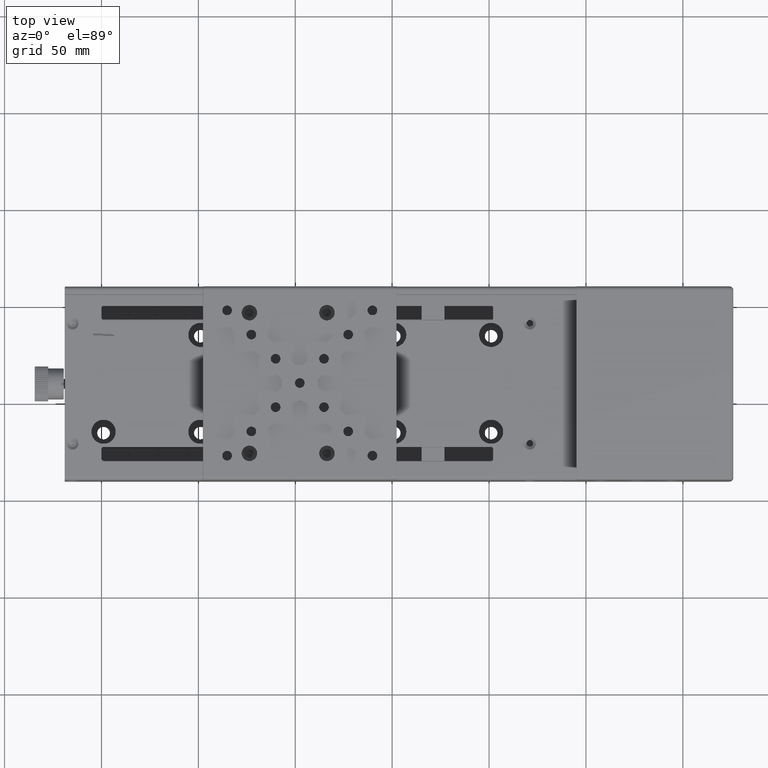
[diagram: clean part render]
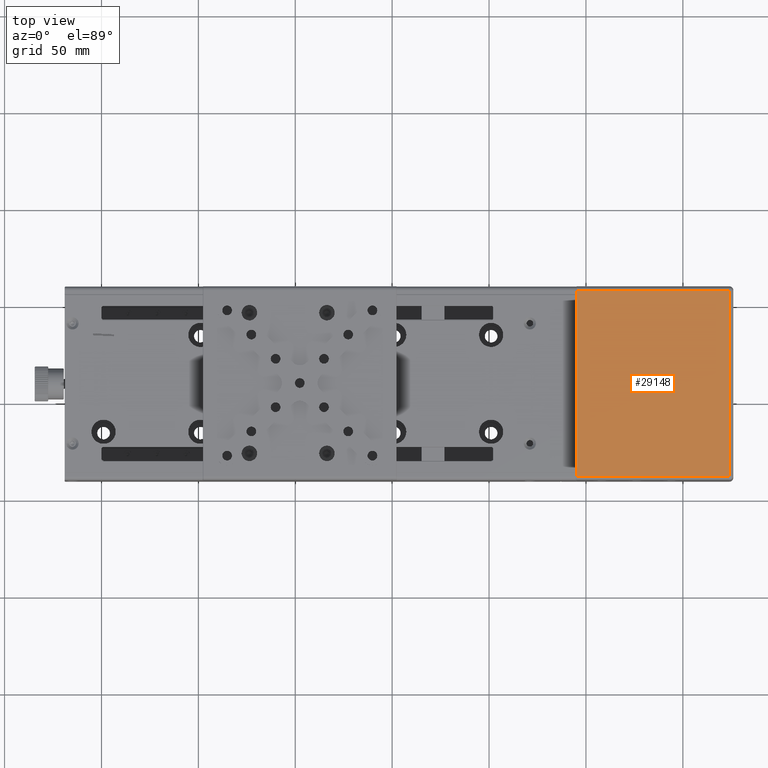
[diagram: same view with one face highlighted and labeled with its STEP entity id]
A machine part, top view. The second image highlights one B-rep face of the part: STEP entity #29148.
In plain terms, the highlighted planar face has unit normal (0, 0, -1).
Its self-contained STEP definition (entity closure, byte-faithful):
#60 = VERTEX_POINT ( 'NONE', #54772 ) ;
#1842 = CARTESIAN_POINT ( 'NONE',  ( 95.03920879970989688, -38.00575141257550627, 44.00000000000000000 ) ) ;
#4113 = DIRECTION ( 'NONE',  ( 1.026095422780651895E-16, 1.574195508254739856E-32, -1.000000000000000000 ) ) ;
#5211 = FACE_OUTER_BOUND ( 'NONE', #8388, .T. ) ;
#8388 = EDGE_LOOP ( 'NONE', ( #38152, #50283, #21107, #53005 ) ) ;
#10112 = CARTESIAN_POINT ( 'NONE',  ( 176.0392087997099964, -38.00575141257550627, 44.00000000000000000 ) ) ;
#12960 = CARTESIAN_POINT ( 'NONE',  ( 176.0392087997099964, 57.99424858742449373, 44.00000000000000000 ) ) ;
#17732 = VECTOR ( 'NONE', #44668, 1000.000000000000000 ) ;
#18293 = CARTESIAN_POINT ( 'NONE',  ( 95.03920879970989688, 57.99424858742449373, 44.00000000000000000 ) ) ;
#19413 = EDGE_CURVE ( 'NONE', #57123, #60, #50295, .T. ) ;
#21107 = ORIENTED_EDGE ( 'NONE', *, *, #59428, .F. ) ;
#21973 = VERTEX_POINT ( 'NONE', #63577 ) ;
#22553 = LINE ( 'NONE', #12960, #70416 ) ;
#22602 = LINE ( 'NONE', #67947, #64969 ) ;
#28424 = CARTESIAN_POINT ( 'NONE',  ( 174.0392087997099964, -40.00575141257549916, 44.00000000000000000 ) ) ;
#29148 = ADVANCED_FACE ( 'NONE', ( #5211 ), #54615, .F. ) ;
#34315 = LINE ( 'NONE', #28424, #17732 ) ;
#34331 = AXIS2_PLACEMENT_3D ( 'NONE', #72680, #4113, #67157 ) ;
#38152 = ORIENTED_EDGE ( 'NONE', *, *, #71419, .T. ) ;
#44668 = DIRECTION ( 'NONE',  ( 6.862851190818739273E-17, 1.000000000000000000, 2.278389527667130117E-32 ) ) ;
#49200 = DIRECTION ( 'NONE',  ( 1.000000000000000000, -8.007088936040699777E-17, 1.026095422780651895E-16 ) ) ;
#50283 = ORIENTED_EDGE ( 'NONE', *, *, #53356, .T. ) ;
#50295 = LINE ( 'NONE', #10112, #63424 ) ;
#53005 = ORIENTED_EDGE ( 'NONE', *, *, #19413, .T. ) ;
#53356 = EDGE_CURVE ( 'NONE', #21973, #66719, #22553, .T. ) ;
#54615 = PLANE ( 'NONE',  #34331 ) ;
#54772 = CARTESIAN_POINT ( 'NONE',  ( 174.0392087997099964, -38.00575141257550627, 44.00000000000000000 ) ) ;
#57123 = VERTEX_POINT ( 'NONE', #1842 ) ;
#59428 = EDGE_CURVE ( 'NONE', #57123, #66719, #22602, .T. ) ;
#63424 = VECTOR ( 'NONE', #49200, 1000.000000000000000 ) ;
#63577 = CARTESIAN_POINT ( 'NONE',  ( 174.0392087997099964, 57.99424858742449373, 44.00000000000000000 ) ) ;
#64969 = VECTOR ( 'NONE', #67595, 1000.000000000000000 ) ;
#66719 = VERTEX_POINT ( 'NONE', #18293 ) ;
#67157 = DIRECTION ( 'NONE',  ( 0.000000000000000000, -1.000000000000000000, -1.574195508254739856E-32 ) ) ;
#67595 = DIRECTION ( 'NONE',  ( 6.862851190818739273E-17, 1.000000000000000000, 9.035018104045889799E-18 ) ) ;
#67947 = CARTESIAN_POINT ( 'NONE',  ( 95.03920879970989688, -38.00575141257544942, 44.00000000000000000 ) ) ;
#70069 = DIRECTION ( 'NONE',  ( -1.000000000000000000, 3.089426096435059871E-16, -1.026095422780651895E-16 ) ) ;
#70416 = VECTOR ( 'NONE', #70069, 1000.000000000000000 ) ;
#71419 = EDGE_CURVE ( 'NONE', #60, #21973, #34315, .T. ) ;
#72680 = CARTESIAN_POINT ( 'NONE',  ( 176.0392087997099964, -40.00575141257549916, 44.00000000000000000 ) ) ;